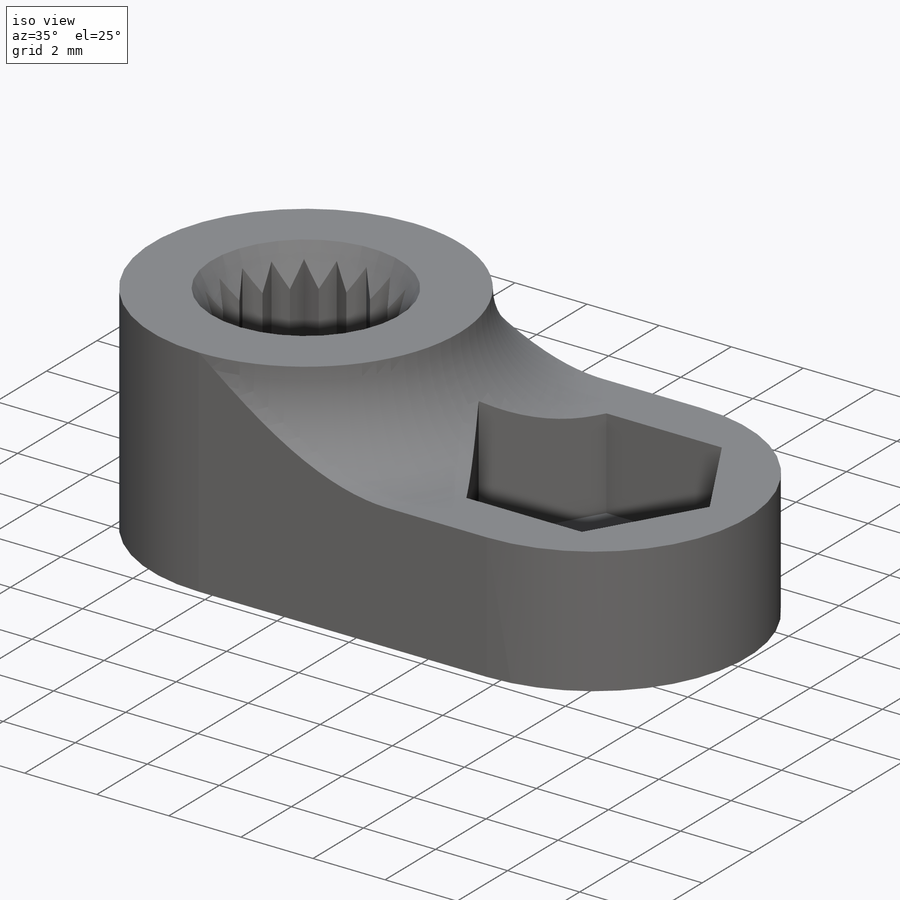
[diagram: iso view]
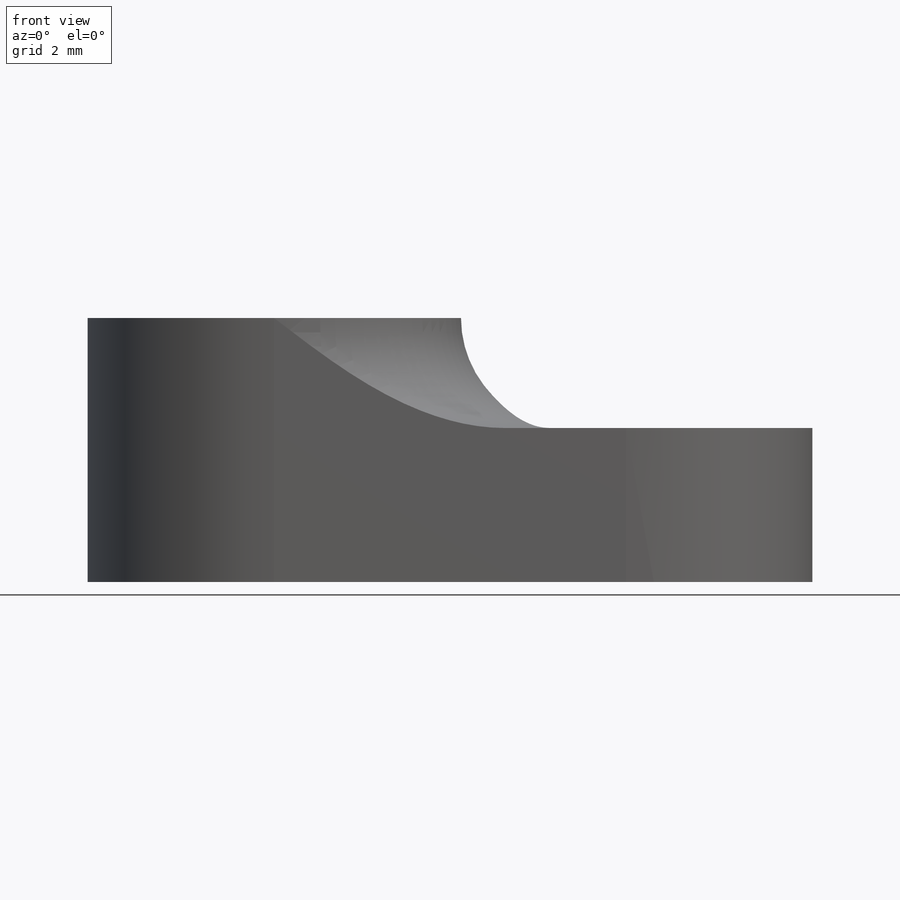
[diagram: front view]
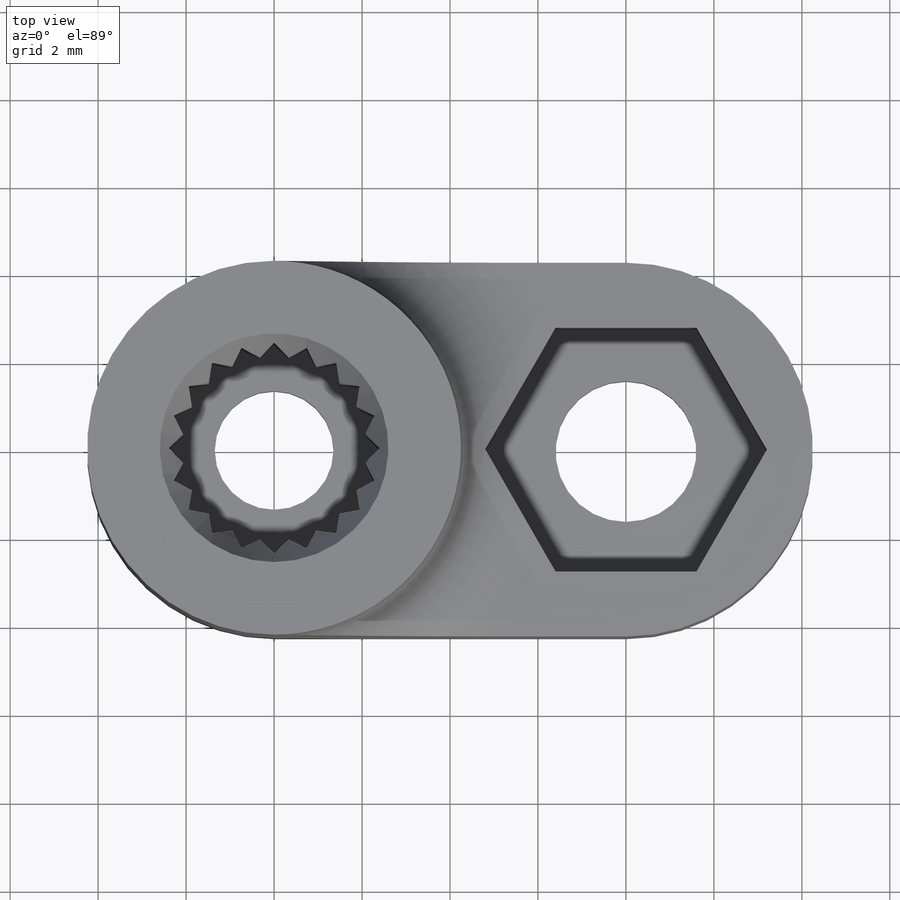
[diagram: top view]
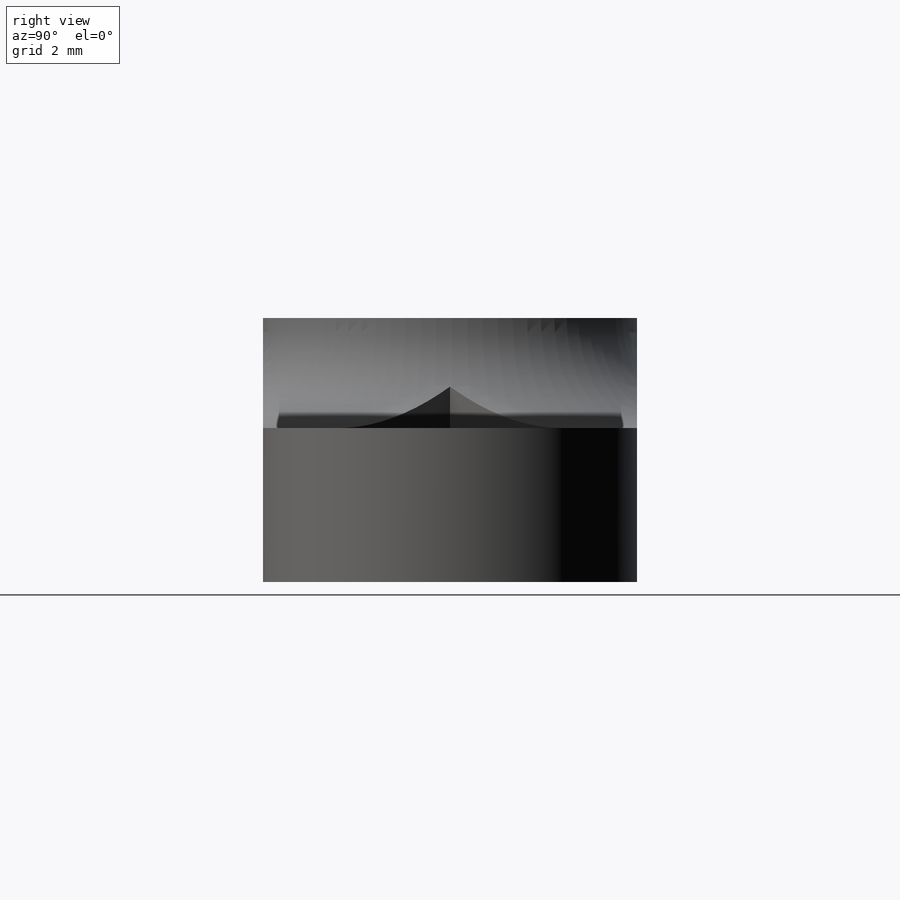
[diagram: right view]
SOLIDWORKS PART (.sldprt)
format: sldprt  version: not decoded by parser v0  size: 300,032 bytes
history: native  units: mm
features: sketch x8, cut_extrude x7, material x1, extrude x1, chamfer x1, fillet x1, pattern_circular x1 (+12 scaffold rows collapsed)
feature tree (32):
  scaffold x12  (default folders/planes/origin — collapsed)
  material  "Material <not specified>"
  sketch  "Sketch1"  dims[D1=8.0mm D2=8.5mm]
  extrude  "Boss-Extrude1"  Depth=6mm
  sketch  "Sketch2"  dims[D1=4.2mm]
  cut_extrude  "Cut-Extrude1"  Depth=3.5mm
  sketch  "Sketch3"  dims[D1=5.0mm]
  cut_extrude  "Cut-Extrude2"  Depth=1.5mm
  sketch  "Sketch4"  dims[D1=2.7mm]
  cut_extrude  "Cut-Extrude3"  [1 undecoded]
  sketch  "Sketch5"  dims[D1=5.55mm]
  cut_extrude  "Cut-Extrude4"  Depth=5mm
  sketch  "Sketch6"  dims[D1=3.2mm]
  cut_extrude  "Cut-Extrude5"  [1 undecoded]
  chamfer  "Chamfer2"  Distance=0.5mm
  sketch  "Sketch8"
  cut_extrude  "Cut-Extrude6"  Depth=2.5mm
  fillet  "Fillet1"  Radius=2.5mm
  sketch  "Sketch9"  dims[c1.D1=~2.881693mm c2.D1=18.0deg c2.D2=2.1mm c2.D3=2.4mm c3.D2=2.1mm c3.D3=2.4mm c4.D3=2.4mm]
  cut_extrude  "Cut-Extrude7"  [1 undecoded]
  pattern_circular  "CirPattern1"  Count=20 Angle=360deg
decode coverage: 15 of 19 modeling features carry decoded parameters
note: ~ marks probable driven/reference dimensions
note: 3 parameter values undecoded
summary: no parameter record found for 3 features
note: suppression state not decoded; provenance and decode notes live in map.json
